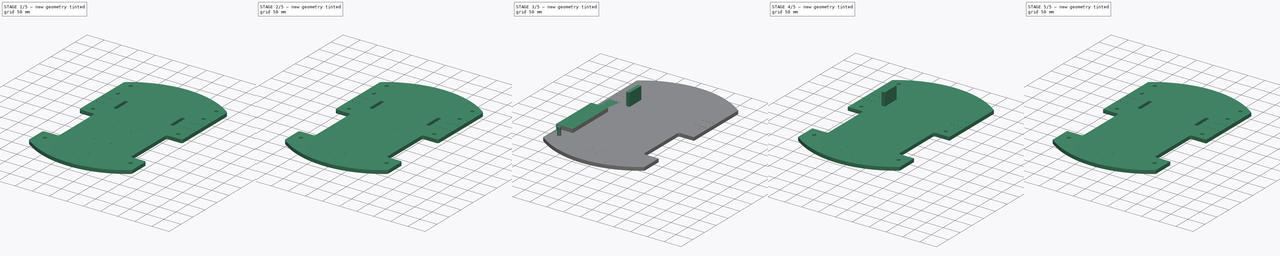
[diagram: build sequence overview — one tinted view per stage of 5, left to right]
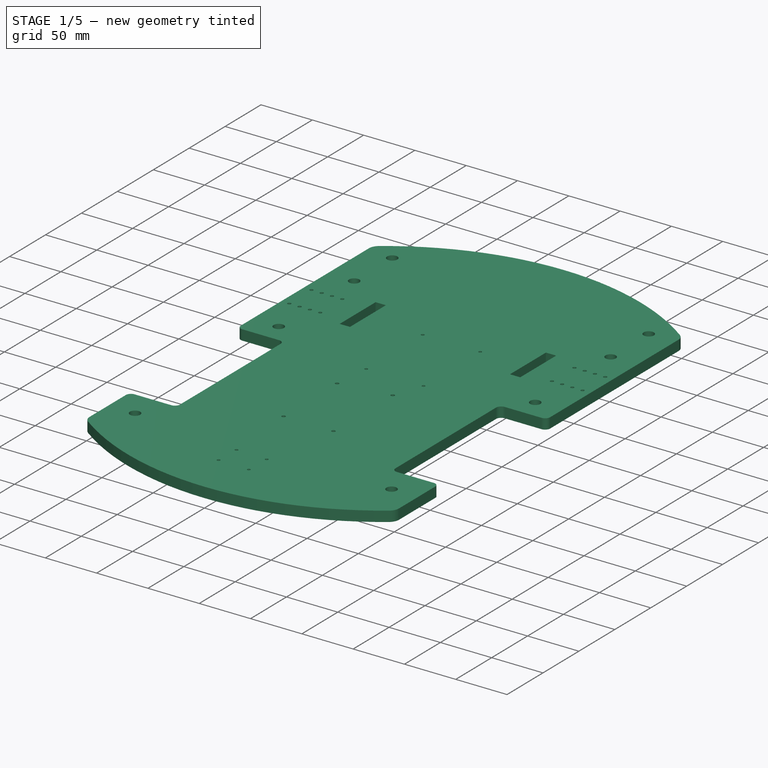
[diagram: stage 1 of 5 — iso view after this stage's code; geometry added in this stage tinted green]
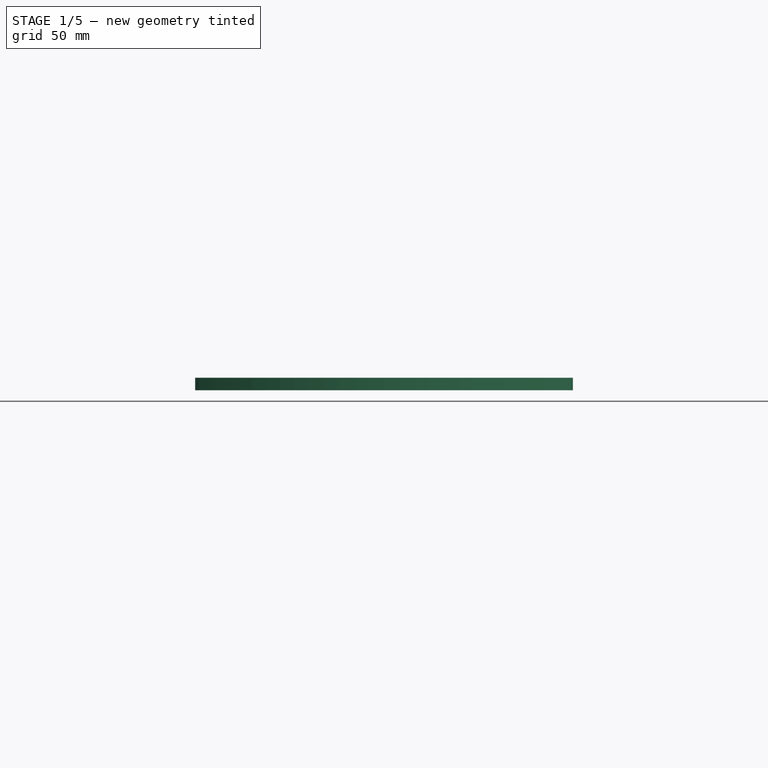
[diagram: stage 1 of 5 — front view after this stage's code; geometry added in this stage tinted green]
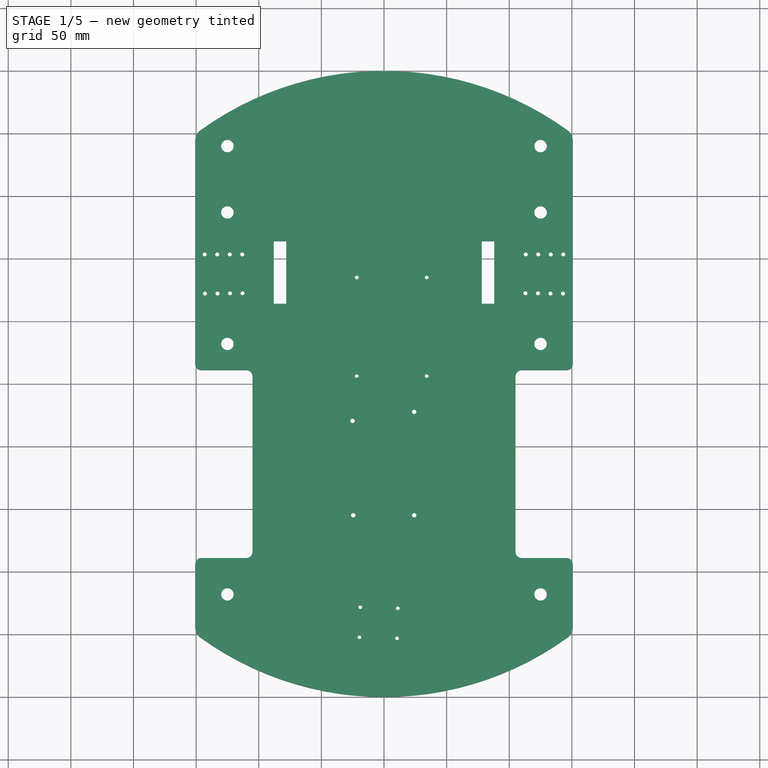
[diagram: stage 1 of 5 — top view after this stage's code; geometry added in this stage tinted green]
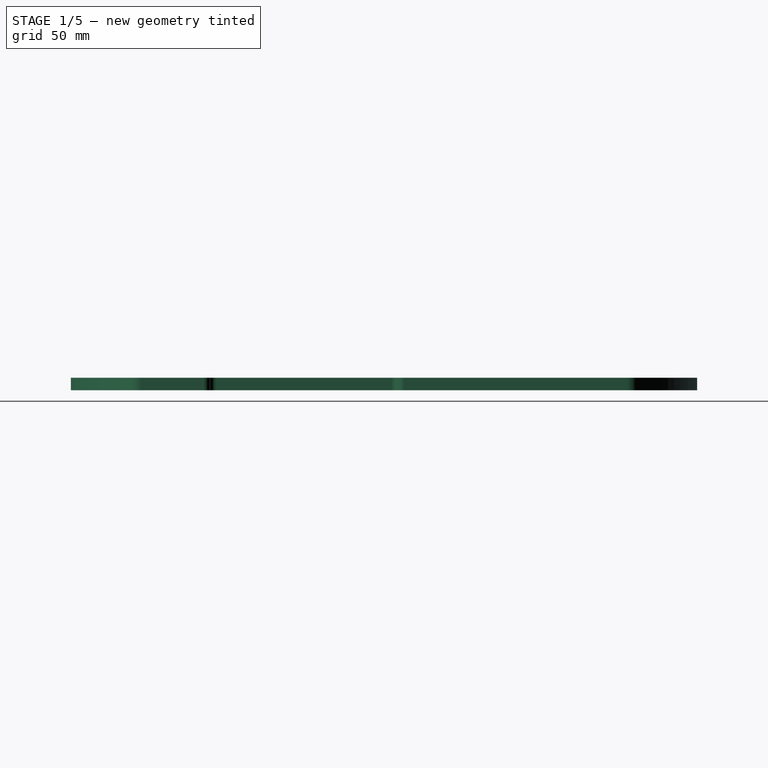
[diagram: stage 1 of 5 — right view after this stage's code; geometry added in this stage tinted green]
FCSTD DOCUMENT  (FreeCAD 0.19R24276 (Git))
Label: base_1
License: All rights reserved
LicenseURL: http://en.wikipedia.org/wiki/All_rights_reserved
objects: Part::Cut×20, Part::Cylinder×12, Part::Mirroring×6, Part::Feature×4, Sketcher::SketchObject×3, Part::Fillet×3, PartDesign::Plane×2, PartDesign::Pocket×2, Part::Box×2, PartDesign::Pad×1, PartDesign::Mirrored×1, PartDesign::Body×1
note: 60 computed .brp shape members not serialized (recipe doc carries the construction recipe); baked Part::Feature solids carry a one-line shape summary decoded from their .brp

FEATURE [Part::Feature] Cut015_solid  label="Cut015 (Solid)"
  shape: bbox 301.6 x 500 x 10 mm, 62 faces (baked)
FEATURE [Part::Cylinder] Cylinder008
  Angle = 360
  AttacherType = Attacher::AttachEngine3D
  Height = 500
  Placement = pos=(-24.52,-104.82,-69.25) rot=(0,0,1;0rad)
  Radius = 1.8
FEATURE [Part::Cylinder] Cylinder009
  Angle = 360
  AttacherType = Attacher::AttachEngine3D
  Height = 500
  Placement = pos=(24.1,-104.82,-69.25) rot=(0,0,1;0rad)
  Radius = 1.8
FEATURE [Part::Cylinder] Cylinder010
  Angle = 360
  AttacherType = Attacher::AttachEngine3D
  Height = 500
  Placement = pos=(24.1,-22.24,-69.25) rot=(0,0,1;0rad)
  Radius = 1.8
FEATURE [Part::Cylinder] Cylinder011
  Angle = 360
  AttacherType = Attacher::AttachEngine3D
  Height = 500
  Placement = pos=(-25.12,-29.42,-69.25) rot=(0,0,1;0rad)
  Radius = 1.8
FEATURE [Part::Cut] Cut016
  Base = -> Cut015_solid
  Tool = -> Cylinder008
FEATURE [Part::Cut] Cut017
  Base = -> Cut016
  Tool = -> Cylinder009
FEATURE [Part::Cut] Cut018
  Base = -> Cut017
  Tool = -> Cylinder011
FEATURE [Part::Cut] Cut019
  Base = -> Cut018
  Tool = -> Cylinder010
FEATURE [Part::Feature] Cut019_solid  label="Cut019 (Solid)"
  shape: bbox 301.6 x 500 x 10 mm, 66 faces (baked)
FEATURE [Part::Fillet] Fillet002
  Base = -> Cut019_solid
  Edges = 4 edges r=5: [Edge134,Edge136,Edge141,Edge143]
FEATURE [Part::Feature] Fillet002_solid  label="Fillet002 (Solid)"
  shape: bbox 301.6 x 500 x 10 mm, 70 faces (baked)
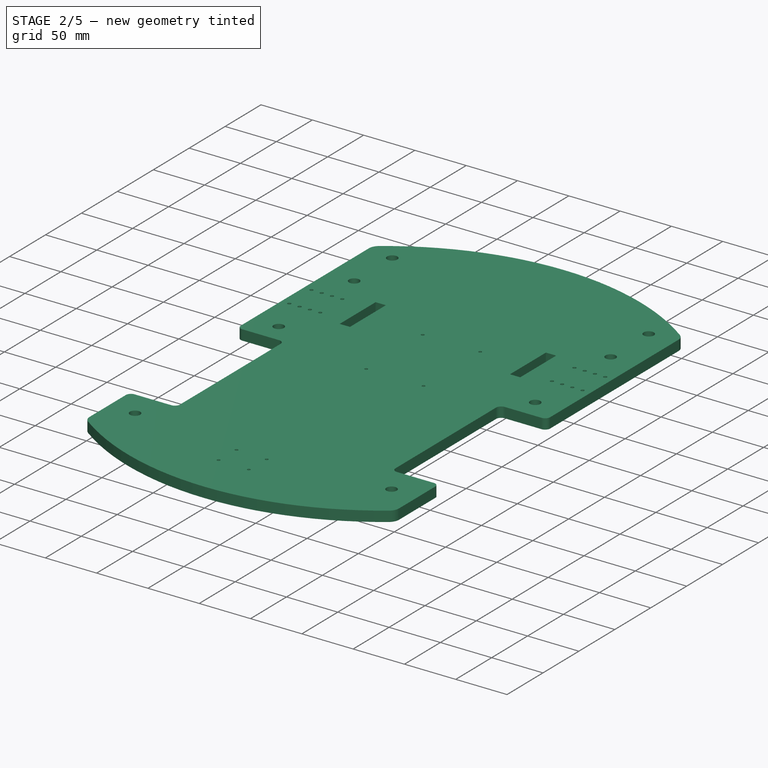
[diagram: stage 2 of 5 — iso view after this stage's code; geometry added in this stage tinted green]
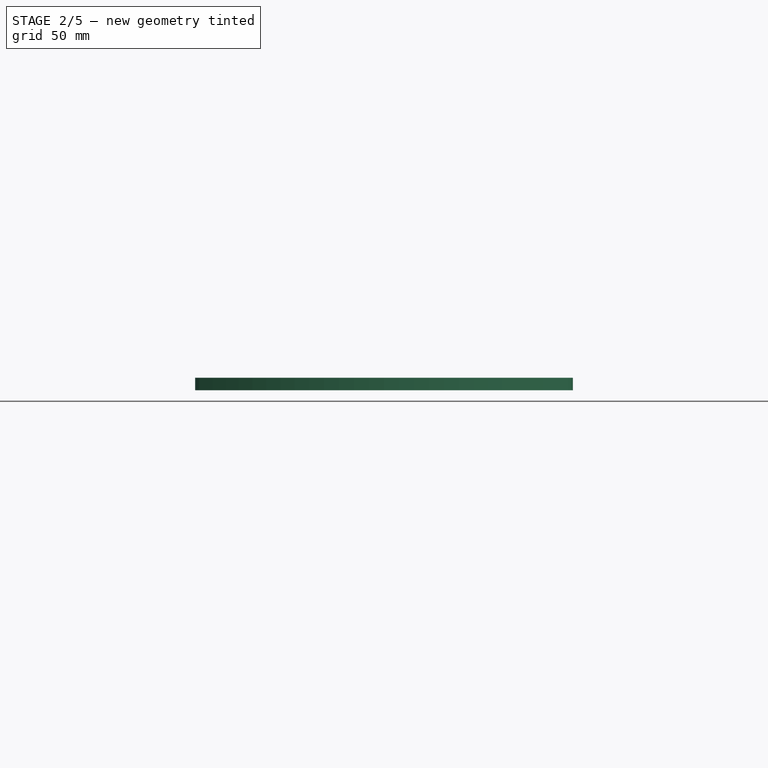
[diagram: stage 2 of 5 — front view after this stage's code; geometry added in this stage tinted green]
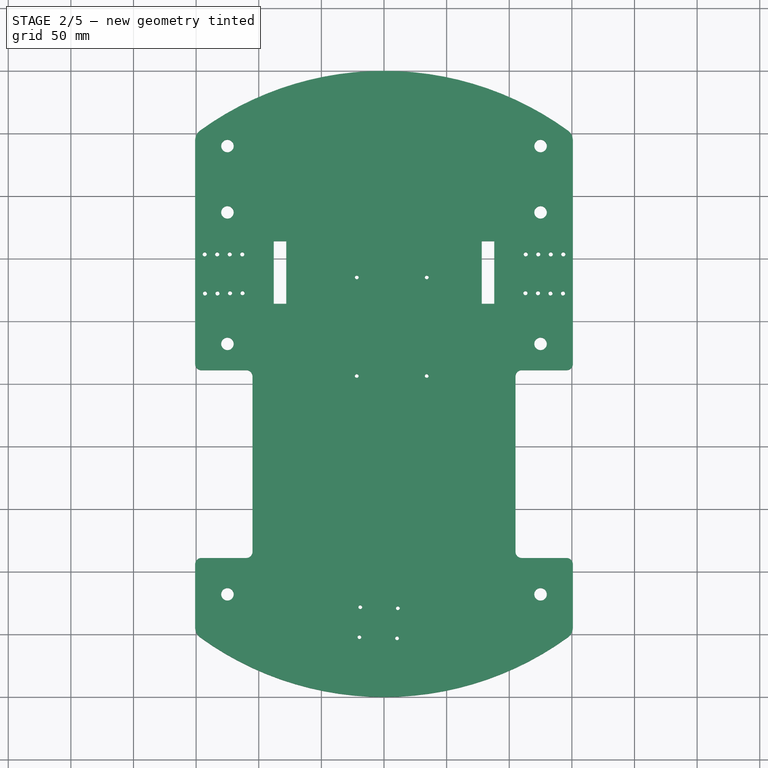
[diagram: stage 2 of 5 — top view after this stage's code; geometry added in this stage tinted green]
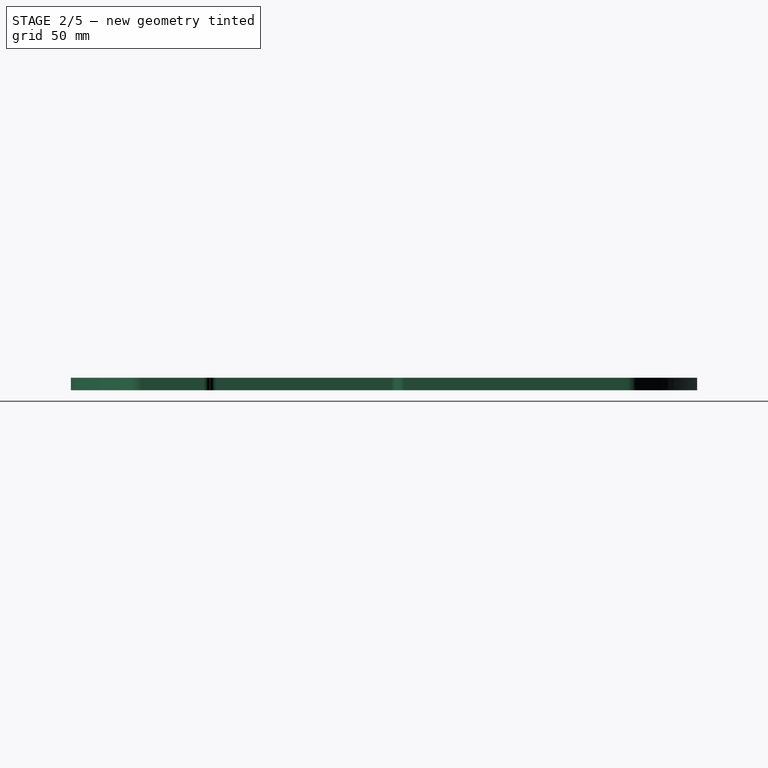
[diagram: stage 2 of 5 — right view after this stage's code; geometry added in this stage tinted green]
FEATURE [Part::Feature] Cut011_solid  label="Cut011 (Solid)"
  shape: bbox 301.6 x 500 x 10 mm, 50 faces (baked)
FEATURE [Part::Fillet] Fillet
  Base = -> Cut011_solid
  Edges = 4 edges r=5: [Edge6,Edge10,Edge104,Edge107]
FEATURE [Part::Fillet] Fillet001
  Base = -> Fillet
  Edges = 4 edges r=10: [Edge2,Edge59,Edge117,Edge119]
FEATURE [Part::Cylinder] Cylinder004
  Angle = 360
  AttacherType = Attacher::AttachEngine3D
  Height = 500
  Placement = pos=(-21.75,85.08,-178.28) rot=(0,0,1;0rad)
  Radius = 1.5
FEATURE [Part::Cylinder] Cylinder005
  Angle = 360
  AttacherType = Attacher::AttachEngine3D
  Height = 500
  Placement = pos=(34.12,85.08,-160.31) rot=(0,0,1;0rad)
  Radius = 1.5
FEATURE [Part::Cylinder] Cylinder006
  Angle = 360
  AttacherType = Attacher::AttachEngine3D
  Height = 100
  Placement = pos=(34.12,6.36,-29.98) rot=(0,0,1;0rad)
  Radius = 1.5
FEATURE [Part::Cylinder] Cylinder007
  Angle = 360
  AttacherType = Attacher::AttachEngine3D
  Height = 100
  Placement = pos=(-21.75,6.36,-27.17) rot=(0,0,1;0rad)
  Radius = 1.5
FEATURE [Part::Cut] Cut012
  Base = -> Fillet001
  Tool = -> Cylinder007
FEATURE [Part::Cut] Cut013
  Base = -> Cut012
  Tool = -> Cylinder006
FEATURE [Part::Cut] Cut014
  Base = -> Cut013
  Tool = -> Cylinder004
FEATURE [Part::Cut] Cut015
  Base = -> Cut014
  Tool = -> Cylinder005
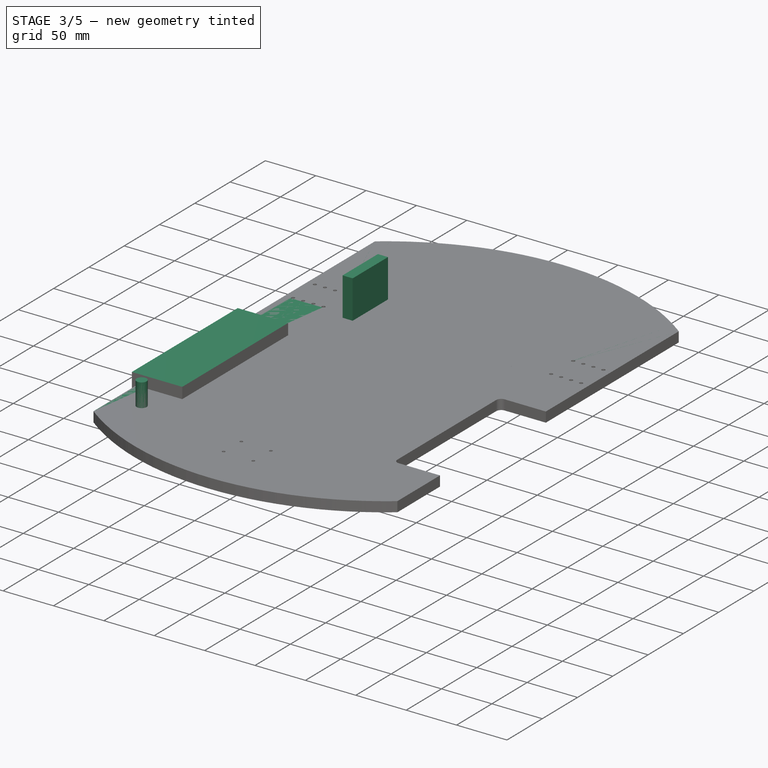
[diagram: stage 3 of 5 — iso view after this stage's code; geometry added in this stage tinted green]
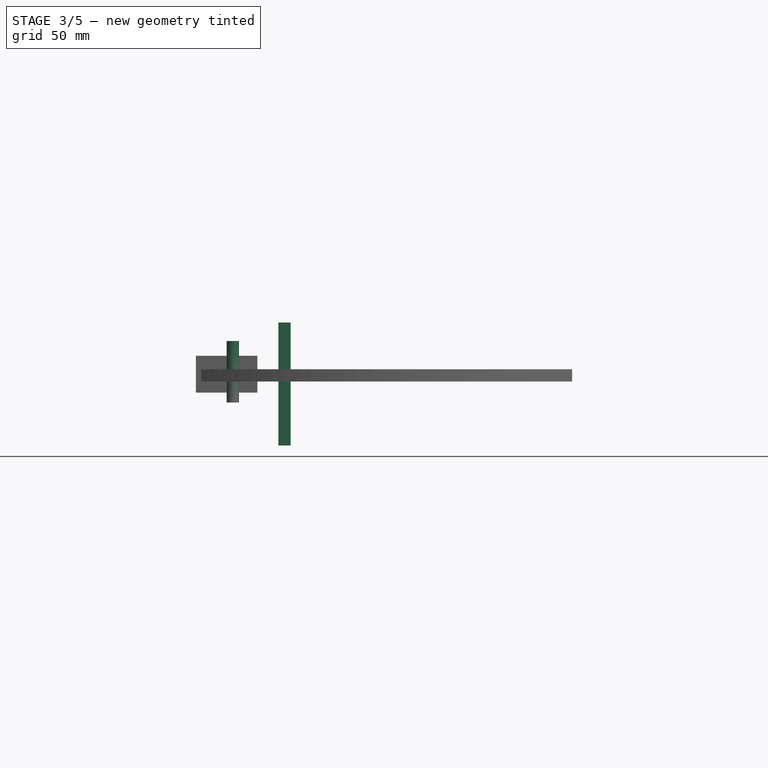
[diagram: stage 3 of 5 — front view after this stage's code; geometry added in this stage tinted green]
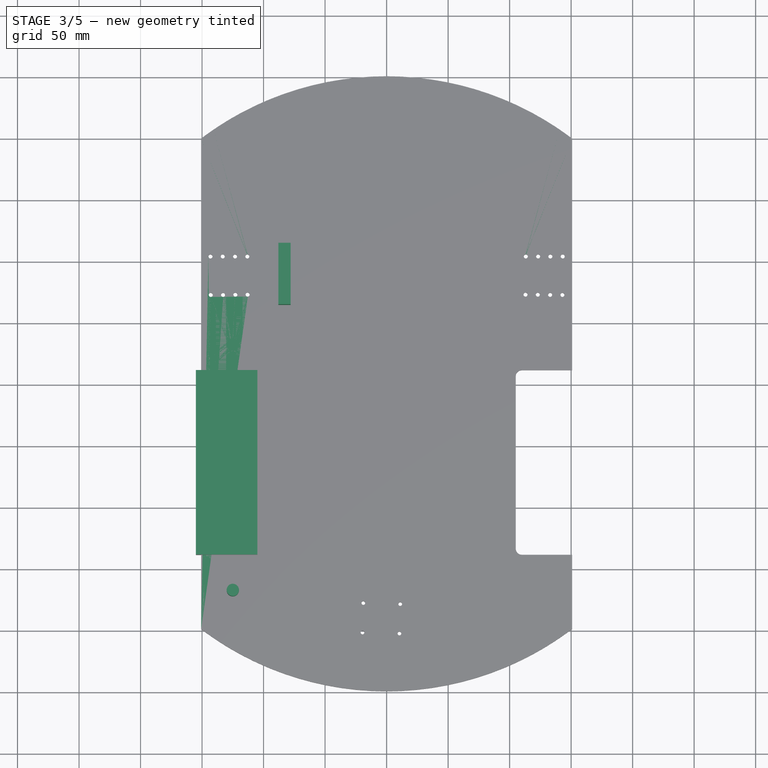
[diagram: stage 3 of 5 — top view after this stage's code; geometry added in this stage tinted green]
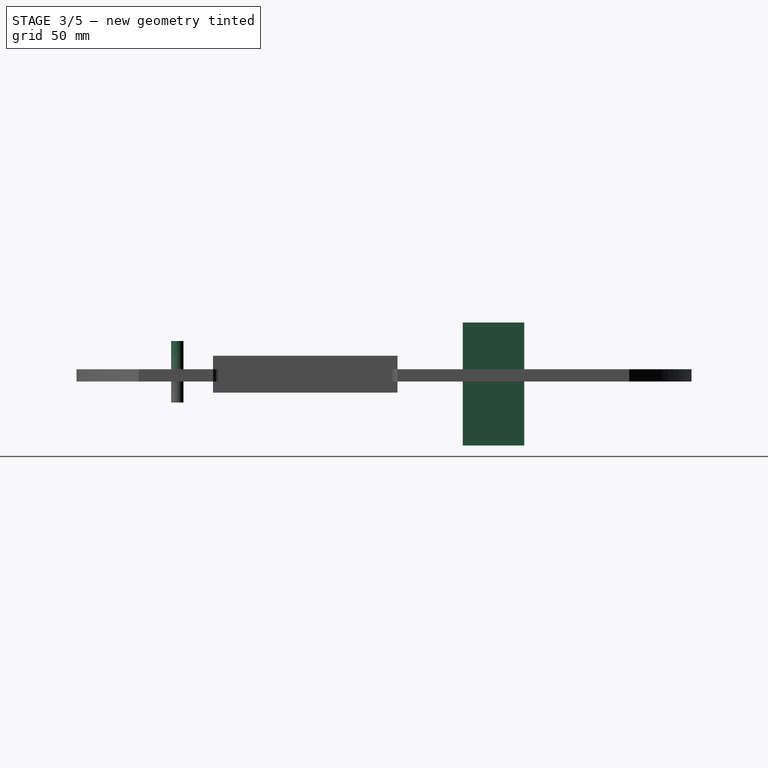
[diagram: stage 3 of 5 — right view after this stage's code; geometry added in this stage tinted green]
FEATURE [Sketcher::SketchObject] Sketch
  FullyConstrained = false
  MapMode = 5
  Support = -> [XY_Plane]
  sketch-geometry (4):
    g0: ArcOfCircle CenterX=0 CenterY=0 CenterZ=0 NormalX=0 NormalY=0 NormalZ=1 AngleXU=0 Radius=250 StartAngle=4.06493 EndAngle=5.35985
    g1: LineSegment StartX=150.791 StartY=199.404 StartZ=0 EndX=150.791 EndY=-199.404 EndZ=0
    g2: LineSegment StartX=-150.791 StartY=-199.404 StartZ=0 EndX=-150.791 EndY=199.404 EndZ=0
    g3: ArcOfCircle CenterX=0 CenterY=0 CenterZ=0 NormalX=0 NormalY=0 NormalZ=1 AngleXU=0 Radius=250 StartAngle=0.923333 EndAngle=2.21826
  constraints (8):
    c: Coincident(g0,g-1)
    c: Diameter(g0) = 500
    c: Vertical(g1)
    c: Vertical(g2)
    c: Equal(g0,g3)
    c: Coincident(g0,g1)
    c: PointOnObject(g3,g1)
    c: Coincident(g0,g3)
FEATURE [PartDesign::Pad] Pad
  Direction = (1,1,1)
  Length = 10
  Length2 = 100
  Profile = -> Sketch
  Type = 0
FEATURE [PartDesign::Plane] DatumPlane
  Length = 60
  MapMode = 5
  Placement = pos=(0,0,10) rot=(0,0,1;0rad)
  ResizeMode = 0
  Support = -> [Pad]
  Width = 60
FEATURE [Sketcher::SketchObject] Sketch001
  FullyConstrained = false
  MapMode = 5
  Placement = pos=(0,0,10) rot=(0,0,1;0rad)
  Support = -> [Pad]
  sketch-geometry (8):
    g0: Circle CenterX=143.172 CenterY=103.498 CenterZ=0 NormalX=0 NormalY=0 NormalZ=1 AngleXU=0 Radius=1.64439
    g1: Circle CenterX=133.172 CenterY=103.496 CenterZ=0 NormalX=0 NormalY=0 NormalZ=1 AngleXU=0 Radius=1.65157
    g2: Circle CenterX=123.167 CenterY=103.498 CenterZ=0 NormalX=0 NormalY=0 NormalZ=1 AngleXU=0 Radius=1.64915
    g3: Circle CenterX=113.171 CenterY=103.496 CenterZ=0 NormalX=0 NormalY=0 NormalZ=1 AngleXU=0 Radius=1.65121
    g4: Circle CenterX=142.928 CenterY=72.261 CenterZ=0 NormalX=0 NormalY=0 NormalZ=1 AngleXU=0 Radius=1.64779
    g5: Circle CenterX=132.931 CenterY=72.262 CenterZ=0 NormalX=0 NormalY=0 NormalZ=1 AngleXU=0 Radius=1.6488
    g6: Circle CenterX=122.93 CenterY=72.4389 CenterZ=0 NormalX=0 NormalY=0 NormalZ=1 AngleXU=0 Radius=1.64918
    g7: Circle CenterX=112.925 CenterY=72.4965 CenterZ=0 NormalX=0 NormalY=0 NormalZ=1 AngleXU=0 Radius=1.65022
FEATURE [PartDesign::Pocket] Pocket
  BaseFeature = -> Pad
  Length = 5
  Length2 = 100
  Profile = -> Sketch001
  Type = 1
FEATURE [PartDesign::Mirrored] Mirrored
  BaseFeature = -> Pocket
  MirrorPlane = -> Sketch001 [V_Axis]
  Originals = -> [Pocket]
FEATURE [PartDesign::Plane] DatumPlane001
  Length = 60
  MapMode = 5
  Placement = pos=(0,0,10) rot=(0,0,1;0rad)
  ResizeMode = 0
  Support = -> [Mirrored]
  Width = 60
FEATURE [Sketcher::SketchObject] Sketch002
  FullyConstrained = false
  MapMode = 5
  Placement = pos=(0,0,10) rot=(0,0,1;0rad)
  Support = -> [DatumPlane001]
  sketch-geometry (4):
    g0: Circle CenterX=-19.5947 CenterY=-202.247 CenterZ=0 NormalX=0 NormalY=0 NormalZ=1 AngleXU=0 Radius=1.5
    g1: Circle CenterX=10.4284 CenterY=-203.085 CenterZ=0 NormalX=0 NormalY=0 NormalZ=1 AngleXU=0 Radius=1.5
    g2: Circle CenterX=-18.9165 CenterY=-178.267 CenterZ=0 NormalX=0 NormalY=0 NormalZ=1 AngleXU=0 Radius=1.5
    g3: Circle CenterX=11.0877 CenterY=-179.124 CenterZ=0 NormalX=0 NormalY=0 NormalZ=1 AngleXU=0 Radius=1.5
  constraints (4):
    c: Diameter(g1) = 3
    c: Diameter(g0) = 3
    c: Diameter(g2) = 3
    c: Diameter(g3) = 3
FEATURE [PartDesign::Pocket] Pocket001
  BaseFeature = -> Mirrored
  Length = 5
  Length2 = 100
  Profile = -> Sketch002
  Type = 1
FEATURE [PartDesign::Body] Body
  Group = -> [Sketch,Pad,DatumPlane,Sketch001,Pocket,Mirrored,DatumPlane001,Sketch002,Pocket001]
  Origin = -> Origin
  Tip = -> Pocket001
FEATURE [Part::Box] Box  label="Cube"
  AttacherType = Attacher::AttachEngine3D
  Height = 30
  Length = 50
  Placement = pos=(105,-139,-9) rot=(0,0,1;0rad)
  Width = 150
FEATURE [Part::Mirroring] Part__Mirroring  label="Cube (Mirror #1)"
  Base = (0,0,0)
  Normal = (1,0,0)
  Source = -> Box
FEATURE [Part::Cut] Cut
  Base = -> Pocket001
  Tool = -> Box
FEATURE [Part::Cylinder] Cylinder
  Angle = 360
  AttacherType = Attacher::AttachEngine3D
  Height = 50
  Placement = pos=(-125,-168,-17) rot=(0,0,1;0rad)
  Radius = 5
FEATURE [Part::Box] Box001  label="Cube001"
  AttacherType = Attacher::AttachEngine3D
  Height = 100
  Length = 10
  Placement = pos=(-88,64,-52) rot=(0,0,1;0rad)
  Width = 50
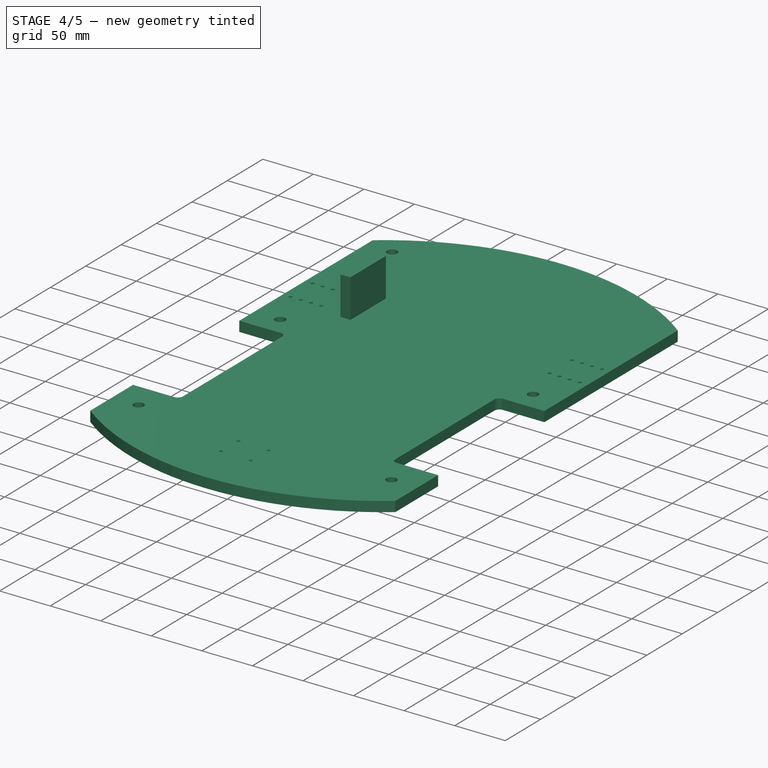
[diagram: stage 4 of 5 — iso view after this stage's code; geometry added in this stage tinted green]
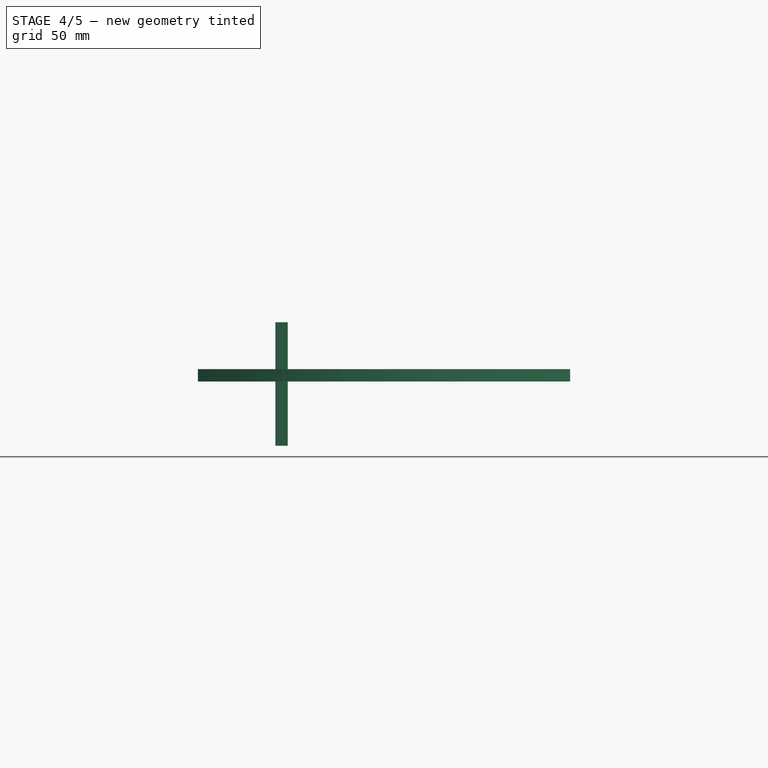
[diagram: stage 4 of 5 — front view after this stage's code; geometry added in this stage tinted green]
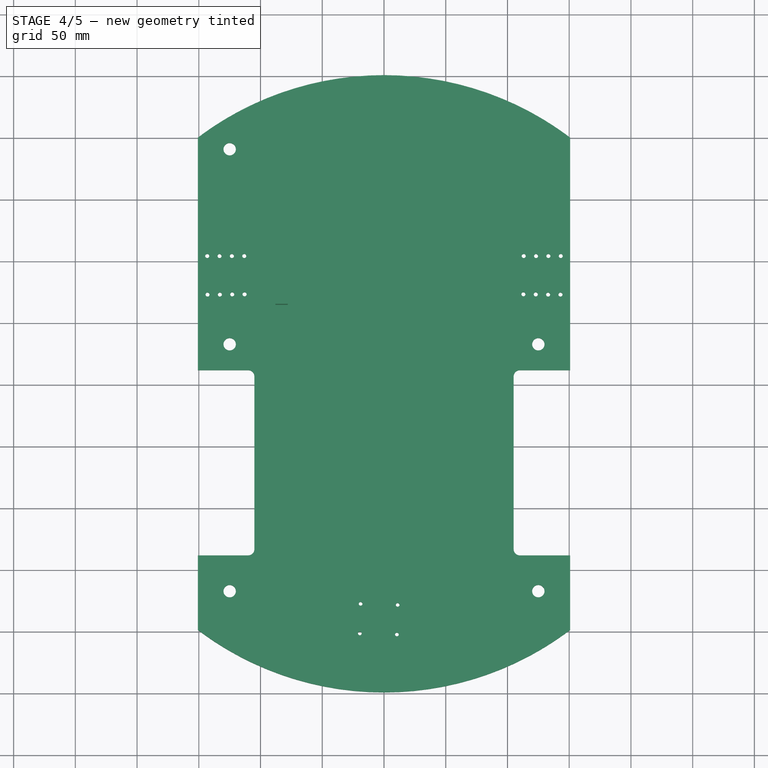
[diagram: stage 4 of 5 — top view after this stage's code; geometry added in this stage tinted green]
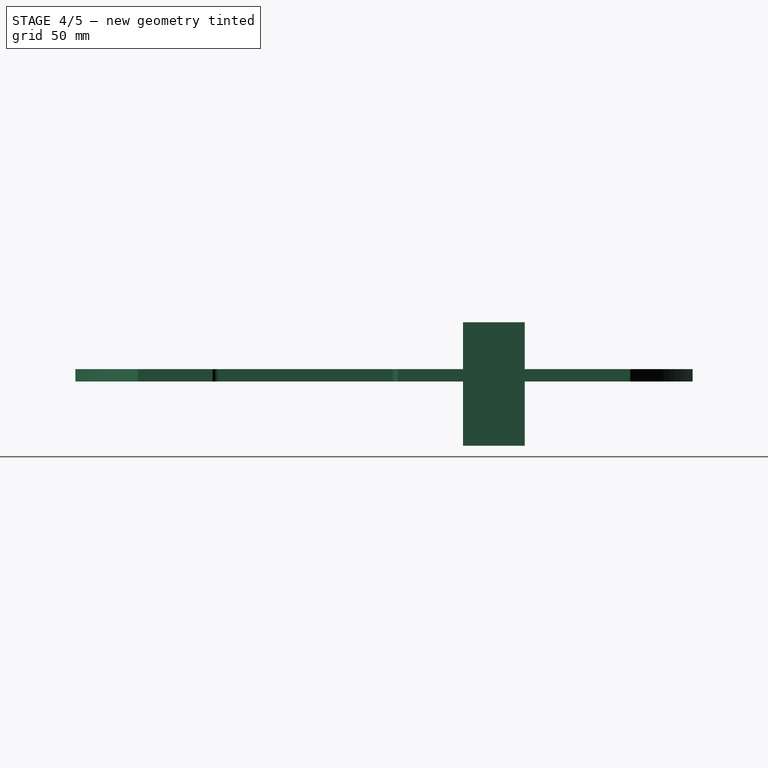
[diagram: stage 4 of 5 — right view after this stage's code; geometry added in this stage tinted green]
FEATURE [Part::Cut] Cut001
  Base = -> Cut
  Tool = -> Part__Mirroring
FEATURE [Part::Cylinder] Cylinder001
  Angle = 360
  AttacherType = Attacher::AttachEngine3D
  Height = 50
  Placement = pos=(-125,32,-17) rot=(0,0,1;0rad)
  Radius = 5
FEATURE [Part::Cylinder] Cylinder003
  Angle = 360
  AttacherType = Attacher::AttachEngine3D
  Height = 50
  Placement = pos=(-125,190,-17) rot=(0,0,1;0rad)
  Radius = 5
FEATURE [Part::Mirroring] Part__Mirroring001  label="Cylinder (Mirror #2)"
  Base = (0,0,0)
  Normal = (1,0,0)
  Source = -> Cylinder
FEATURE [Part::Mirroring] Part__Mirroring002  label="Cylinder001 (Mirror #3)"
  Base = (0,0,0)
  Normal = (1,0,0)
  Source = -> Cylinder001
FEATURE [Part::Cut] Cut002
  Base = -> Cut001
  Tool = -> Cylinder
FEATURE [Part::Cut] Cut003
  Base = -> Cut002
  Tool = -> Part__Mirroring001
FEATURE [Part::Cut] Cut004
  Base = -> Cut003
  Tool = -> Cylinder001
FEATURE [Part::Cut] Cut005
  Base = -> Cut004
  Tool = -> Part__Mirroring002
FEATURE [Part::Cut] Cut006
  Base = -> Cut005
  Tool = -> Cylinder003
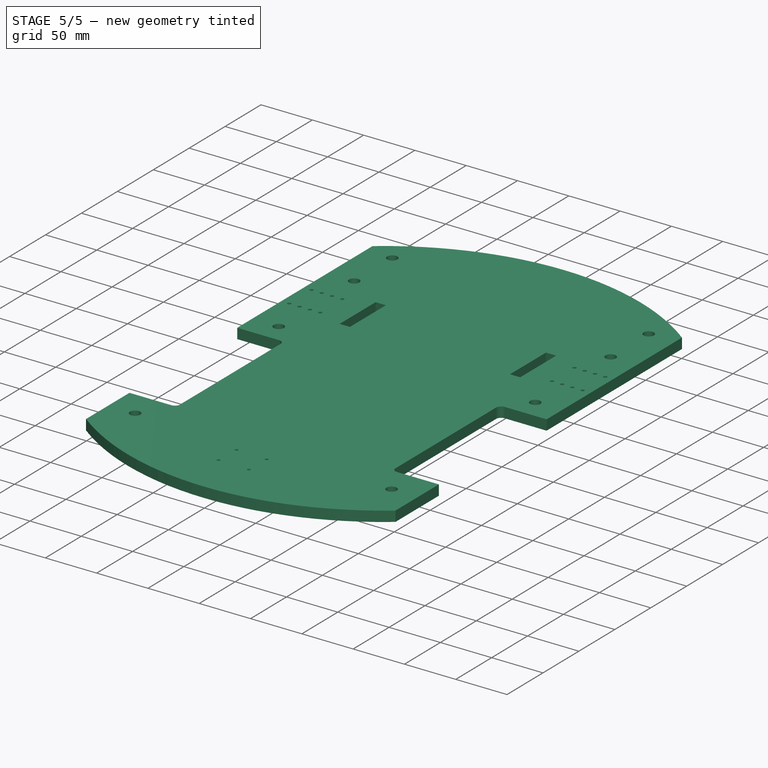
[diagram: stage 5 of 5 — iso view after this stage's code; geometry added in this stage tinted green]
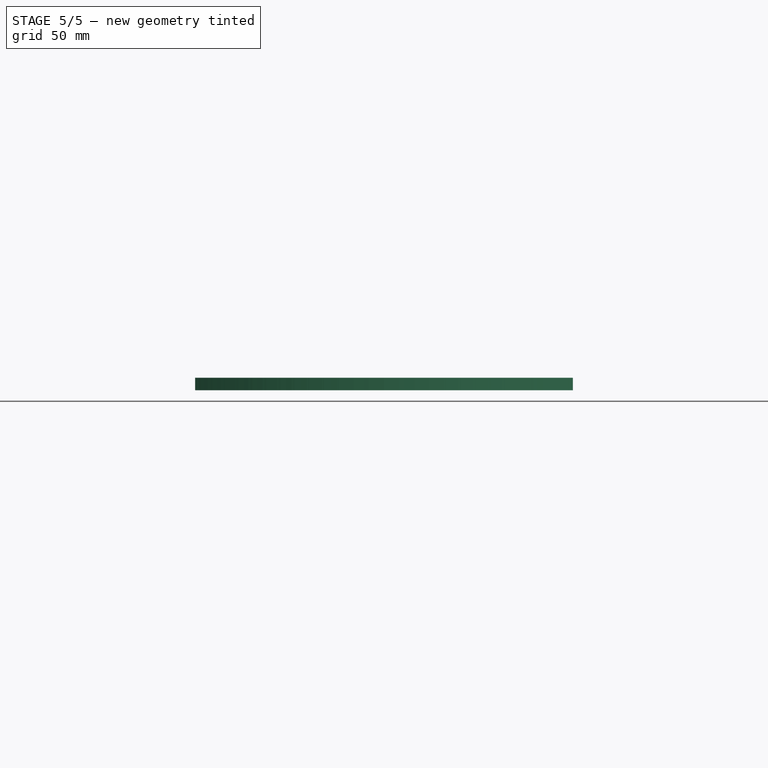
[diagram: stage 5 of 5 — front view after this stage's code; geometry added in this stage tinted green]
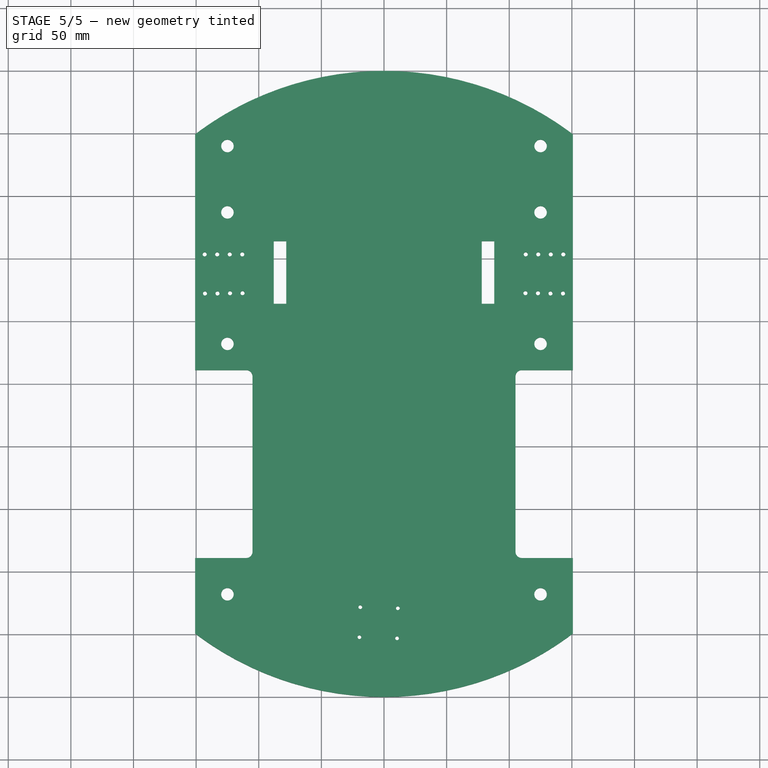
[diagram: stage 5 of 5 — top view after this stage's code; geometry added in this stage tinted green]
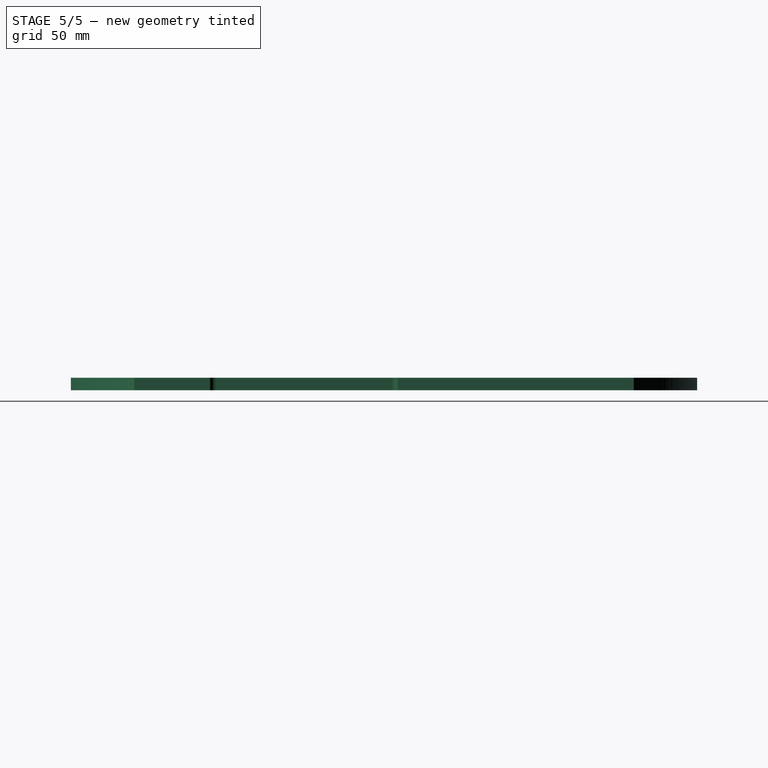
[diagram: stage 5 of 5 — right view after this stage's code; geometry added in this stage tinted green]
FEATURE [Part::Cylinder] Cylinder002
  Angle = 360
  AttacherType = Attacher::AttachEngine3D
  Height = 50
  Placement = pos=(-125,137,-17) rot=(0,0,1;0rad)
  Radius = 5
FEATURE [Part::Mirroring] Part__Mirroring003  label="Cylinder002 (Mirror #4)"
  Base = (0,0,0)
  Normal = (1,0,0)
  Source = -> Cylinder002
FEATURE [Part::Mirroring] Part__Mirroring004  label="Cylinder003 (Mirror #5)"
  Base = (0,0,0)
  Normal = (1,0,0)
  Source = -> Cylinder003
FEATURE [Part::Cut] Cut007
  Base = -> Cut006
  Tool = -> Part__Mirroring004
FEATURE [Part::Cut] Cut008
  Base = -> Cut007
  Tool = -> Cylinder002
FEATURE [Part::Cut] Cut009
  Base = -> Cut008
  Tool = -> Part__Mirroring003
FEATURE [Part::Mirroring] Part__Mirroring005  label="Cube001 (Mirror #6)"
  Base = (0,0,0)
  Normal = (1,0,0)
  Source = -> Box001
FEATURE [Part::Cut] Cut010
  Base = -> Cut009
  Tool = -> Box001
FEATURE [Part::Cut] Cut011
  Base = -> Cut010
  Tool = -> Part__Mirroring005
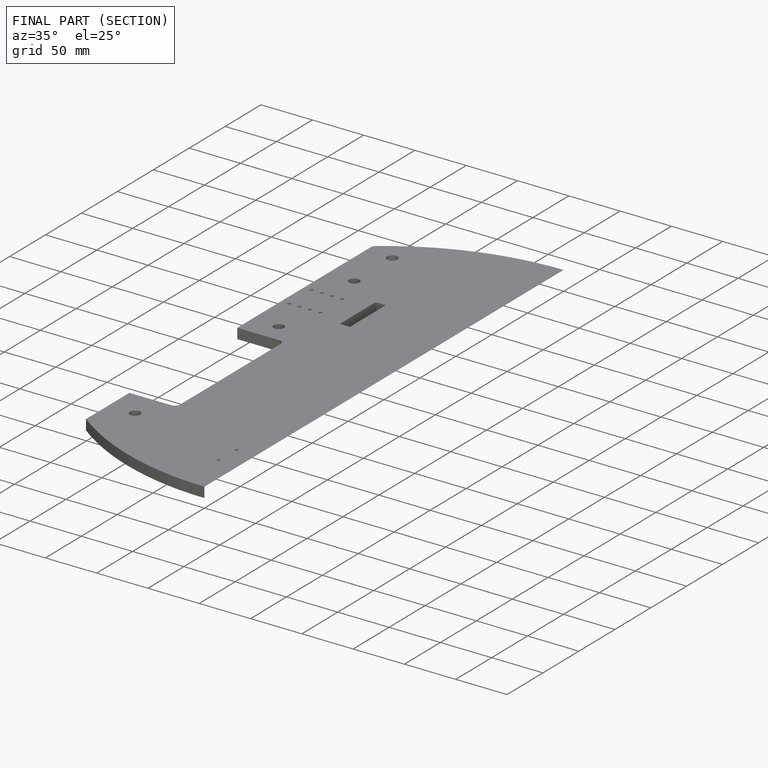
[diagram: finished part — half-section view (interior)]
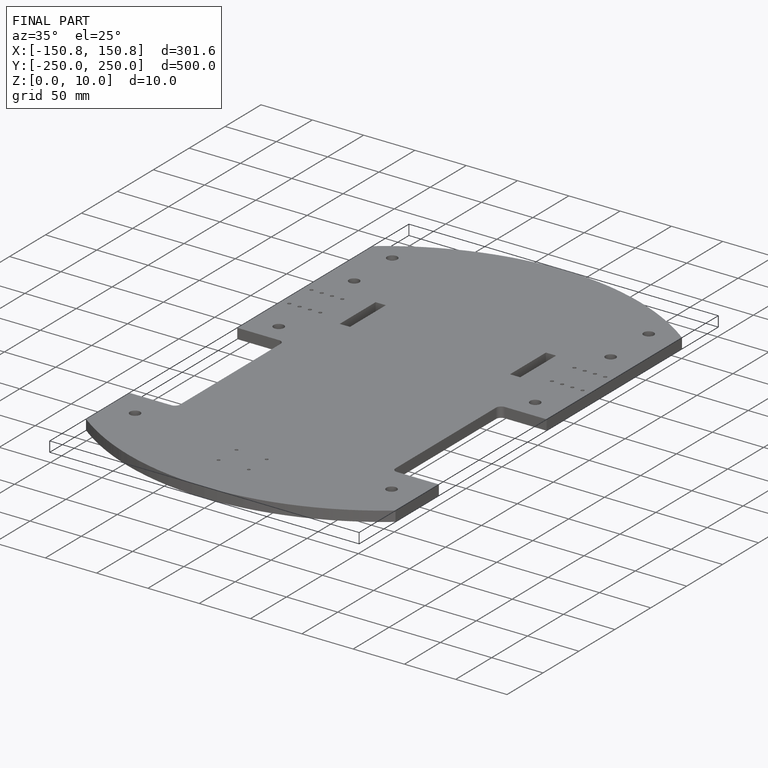
[diagram: finished part — iso view with bounding-box wireframe]
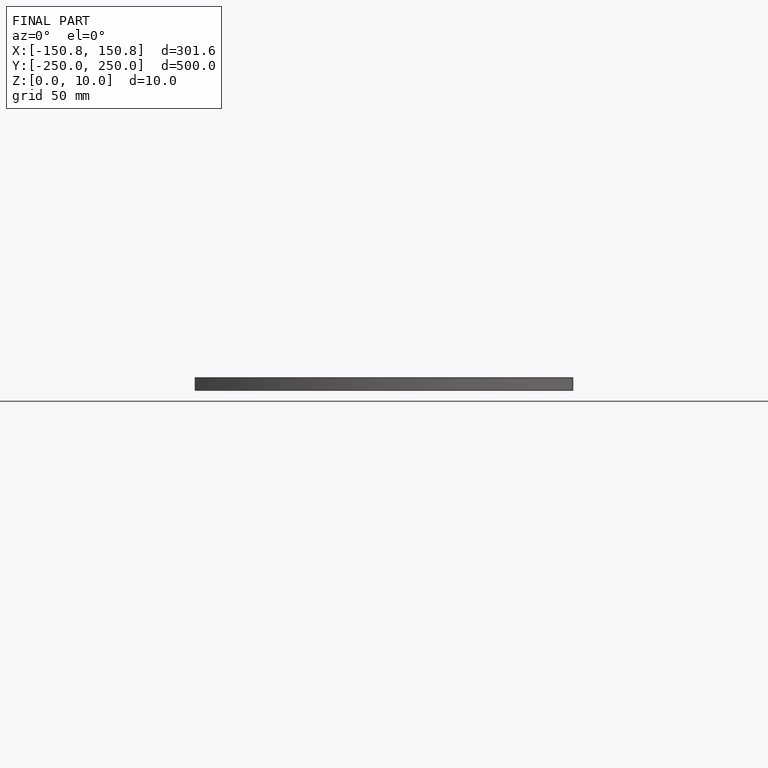
[diagram: finished part — front view with bounding-box wireframe]
